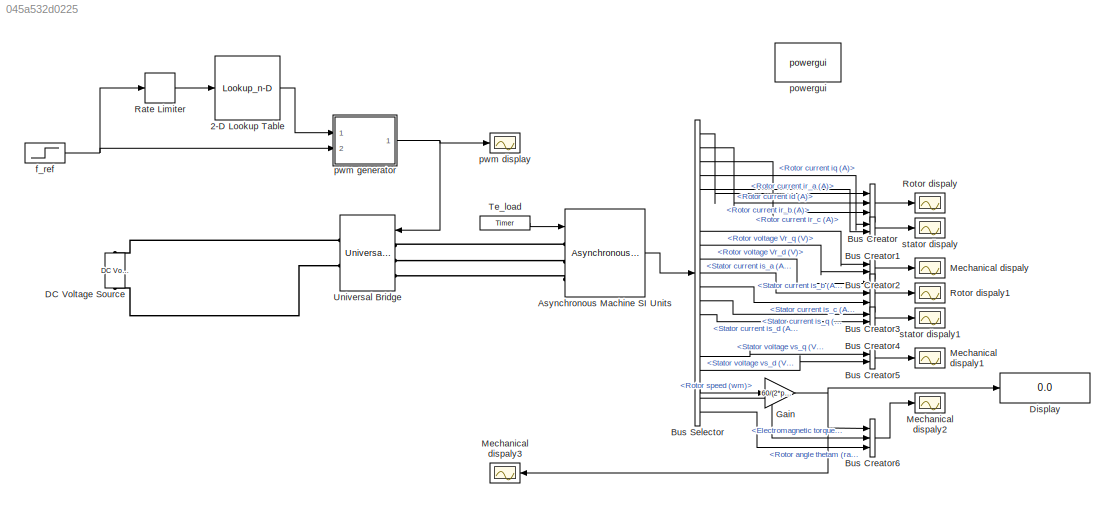
MODEL slx_045a532d0225
KIND model
CONFIG AbsTol = auto
CONFIG EnableMultiTasking = on
CONFIG FixedStep = auto
CONFIG MaxStep = auto
CONFIG MinStep = auto
CONFIG RelTol = 1e-3
CONFIG SampleTimeConstraint = Unconstrained
CONFIG Solver = ode23
CONFIG SolverName = ode23
CONFIG StartTime = 0.0
CONFIG StopTime = 4
BLOCK [Lookup_n-D] 2-D Lookup Table
  BreakpointsForDimension1 = [0 5 25 50 100]
  BreakpointsForDimension2 = [1:3]
  NumberOfTableDimensions = 1
  Ports = [1, 1]
  RndMeth = Simplest
  Table = [0.1 0.1 0.5 1 1]
BLOCK [Reference] Asynchronous Machine SI Units  REF=powerlib/Machines/Asynchronous Machine
SI Units
  AttributesFormatString = \n
  Ports = [1, 1, 0, 0, 0, 3]
  SourceBlock = powerlib/Machines/Asynchronous Machine\nSI Units
  SourceProductBaseCode = PS
  SourceProductName = Simscape Electrical
  SourceType = Asynchronous Machine
BLOCK [BusCreator] Bus Creator
  DisplayOption = bar
  InheritFromInputs = on
  Inputs = 3
  Ports = [3, 1]
BLOCK [BusCreator] Bus Creator1
  DisplayOption = bar
  InheritFromInputs = on
  Inputs = 2
  Ports = [2, 1]
BLOCK [BusCreator] Bus Creator2
  DisplayOption = bar
  InheritFromInputs = on
  Inputs = 2
  Ports = [2, 1]
BLOCK [BusCreator] Bus Creator3
  DisplayOption = bar
  InheritFromInputs = on
  Inputs = 3
  Ports = [3, 1]
BLOCK [BusCreator] Bus Creator4
  DisplayOption = bar
  InheritFromInputs = on
  Inputs = 2
  Ports = [2, 1]
BLOCK [BusCreator] Bus Creator5
  DisplayOption = bar
  InheritFromInputs = on
  Inputs = 2
  Ports = [2, 1]
BLOCK [BusCreator] Bus Creator6
  DisplayOption = bar
  InheritFromInputs = on
  Inputs = 3
  Ports = [3, 1]
BLOCK [BusSelector] Bus Selector
  OutputAsBus = off
  OutputSignals = Rotor measurements.Rotor current ir_a (A),Rotor measurements.Rotor current ir_b (A),Rotor measurements.Rotor current ir_c (A),Rotor measurements.Rotor current  iq (A),Rotor measurements.Rotor current  id (A),Rotor measurements.Rotor flux phir_q (V s),Rotor measurements.Rotor flux phir_d (V s),Rotor measurements.Rotor voltage Vr_q (V),Rotor measurements.Rotor voltage Vr_d (V),Stator measurements.St...<+483ch>
  Ports = [1, 21]
BLOCK [Reference] DC Voltage Source  REF=powerlib/Electrical
Sources/DC Voltage Source
  Ports = [0, 0, 0, 0, 0, 1, 1]
  SourceBlock = powerlib/Electrical\nSources/DC Voltage Source
  SourceProductBaseCode = PS
  SourceProductName = Simscape Electrical
  SourceType = DC Voltage Source
BLOCK [Display] Display
  Decimation = 1
  Ports = [1]
BLOCK [Gain] Gain
  Gain = 60/(2*pi)
  OutDataTypeStr = Inherit: Inherit via internal rule
  ParamDataTypeStr = Inherit: Inherit via internal rule
  SaturateOnIntegerOverflow = off
BLOCK [Scope] Mechanical dispaly
  Floating = off
  NumInputPorts = 1
  Ports = [1]
  ScopeSpecificationString = Simulink.scopes.TimeScopeBlockCfg('CurrentConfiguration', extmgr.ConfigurationSet(extmgr.Configuration('Core','General UI',true),extmgr.Configuration('Core','Source UI',true),extmgr.Configuration('Sources','WiredSimulink',true,'DataLoggingVariableName','ScopeData2','DataLoggingSaveFormat','StructureWithTime','DataLoggingDecimation','1','DataLoggingDecimateData',true),extmgr.Configuration('Visuals'...<+875ch>
BLOCK [Scope] Mechanical dispaly1
  Floating = off
  NumInputPorts = 1
  Ports = [1]
  ScopeSpecificationString = Simulink.scopes.TimeScopeBlockCfg('CurrentConfiguration', extmgr.ConfigurationSet(extmgr.Configuration('Core','General UI',true),extmgr.Configuration('Core','Source UI',true),extmgr.Configuration('Sources','WiredSimulink',true,'DataLoggingVariableName','ScopeData5','DataLoggingSaveFormat','StructureWithTime','DataLoggingDecimation','1','DataLoggingDecimateData',true),extmgr.Configuration('Visuals'...<+875ch>
BLOCK [Scope] Mechanical dispaly2
  Floating = off
  NumInputPorts = 1
  Ports = [1]
  ScopeSpecificationString = Simulink.scopes.TimeScopeBlockCfg('CurrentConfiguration', extmgr.ConfigurationSet(extmgr.Configuration('Core','General UI',true),extmgr.Configuration('Core','Source UI',true),extmgr.Configuration('Sources','WiredSimulink',true,'DataLoggingVariableName','ScopeData8','DataLoggingSaveFormat','StructureWithTime','DataLoggingDecimation','1','DataLoggingDecimateData',true),extmgr.Configuration('Visuals'...<+1748ch>
BLOCK [Scope] Mechanical dispaly3
  Floating = off
  NumInputPorts = 1
  Ports = [1]
  ScopeSpecificationString = Simulink.scopes.TimeScopeBlockCfg('CurrentConfiguration', extmgr.ConfigurationSet(extmgr.Configuration('Core','General UI',true),extmgr.Configuration('Core','Source UI',true),extmgr.Configuration('Sources','WiredSimulink',true,'DataLoggingVariableName','ScopeData1','DataLoggingSaveFormat','StructureWithTime','DataLoggingDecimation','1','DataLoggingDecimateData',true),extmgr.Configuration('Visuals'...<+1748ch>
BLOCK [RateLimiter] Rate Limiter
  FallingSlewLimit = -200
  RisingSlewLimit = 200
BLOCK [Scope] Rotor dispaly
  Floating = off
  NumInputPorts = 1
  Ports = [1]
  ScopeSpecificationString = Simulink.scopes.TimeScopeBlockCfg('CurrentConfiguration', extmgr.ConfigurationSet(extmgr.Configuration('Core','General UI',true),extmgr.Configuration('Core','Source UI',true),extmgr.Configuration('Sources','WiredSimulink',true,'DataLoggingSaveFormat','StructureWithTime','DataLoggingDecimation','1','DataLoggingDecimateData',true),extmgr.Configuration('Visuals','Time Domain',true,'SerializedDisplays...<+1553ch>
BLOCK [Scope] Rotor dispaly1
  Floating = off
  NumInputPorts = 1
  Ports = [1]
  ScopeSpecificationString = Simulink.scopes.TimeScopeBlockCfg('CurrentConfiguration', extmgr.ConfigurationSet(extmgr.Configuration('Core','General UI',true),extmgr.Configuration('Core','Source UI',true),extmgr.Configuration('Sources','WiredSimulink',true,'DataLoggingVariableName','ScopeData6','DataLoggingSaveFormat','StructureWithTime','DataLoggingDecimation','1','DataLoggingDecimateData',true),extmgr.Configuration('Visuals'...<+875ch>
BLOCK [Reference] Te_load  REF=powerlib_extras/Control 
Blocks/Timer
  Ports = [0, 1]
  SourceBlock = powerlib_extras/Control \nBlocks/Timer
  SourceProductBaseCode = PS
  SourceProductName = Simscape Electrical
  SourceType = Timer
BLOCK [Reference] Universal Bridge  REF=powerlib/Power
Electronics/Universal Bridge
  Ports = [1, 0, 0, 0, 0, 3, 2]
  SourceBlock = powerlib/Power\nElectronics/Universal Bridge
  SourceProductBaseCode = PS
  SourceProductName = Simscape Electrical
  SourceType = Universal Bridge
BLOCK [Step] f_ref
  After = 30
  Before = 50
  SampleTime = 0
BLOCK [Reference] powergui  REF=powerlib/powergui
  Ports = []
  Priority = 1
  SourceBlock = powerlib/powergui
  SourceProductBaseCode = PS
  SourceProductName = Simscape Electrical
  SourceType = PSB option menu block
BLOCK [Scope] pwm display
  Floating = off
  NumInputPorts = 1
  Ports = [1]
  ScopeSpecificationString = Simulink.scopes.TimeScopeBlockCfg('CurrentConfiguration', extmgr.ConfigurationSet(extmgr.Configuration('Core','General UI',true),extmgr.Configuration('Core','Source UI',true),extmgr.Configuration('Sources','WiredSimulink',true,'DataLoggingVariableName','ScopeData3','DataLoggingSaveFormat','StructureWithTime','DataLoggingDecimation','1','DataLoggingDecimateData',true),extmgr.Configuration('Visuals'...<+875ch>
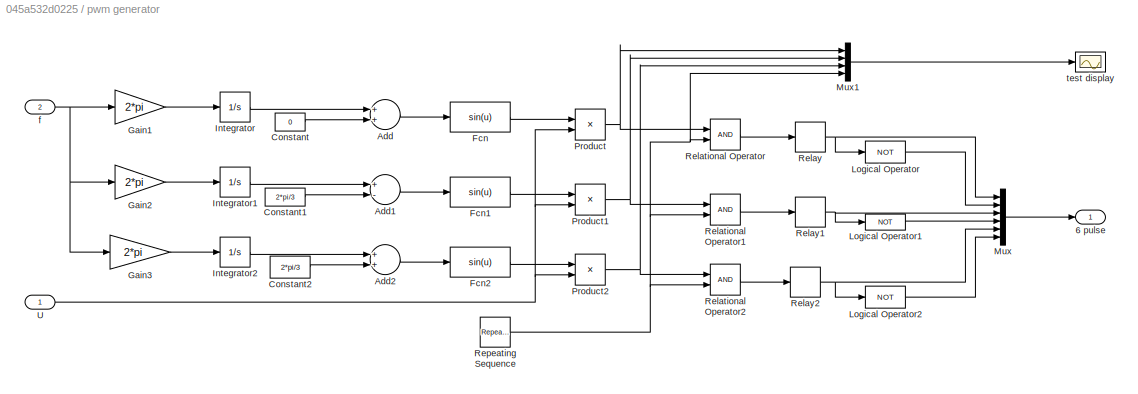
BLOCK [SubSystem] pwm generator
  Ports = [2, 1]
  RequestExecContextInheritance = off
BLOCK [Outport] pwm generator/6 pulse
  IconDisplay = Port number
BLOCK [Sum] pwm generator/Add
  InputSameDT = off
  OutDataTypeStr = Inherit: Inherit via internal rule
  Ports = [2, 1]
  SaturateOnIntegerOverflow = off
BLOCK [Sum] pwm generator/Add1
  InputSameDT = off
  Inputs = +-
  OutDataTypeStr = Inherit: Inherit via internal rule
  Ports = [2, 1]
  SaturateOnIntegerOverflow = off
BLOCK [Sum] pwm generator/Add2
  InputSameDT = off
  OutDataTypeStr = Inherit: Inherit via internal rule
  Ports = [2, 1]
  SaturateOnIntegerOverflow = off
BLOCK [Constant] pwm generator/Constant
  Value = 0
BLOCK [Constant] pwm generator/Constant1
  Value = 2*pi/3
BLOCK [Constant] pwm generator/Constant2
  Value = 2*pi/3
BLOCK [Fcn] pwm generator/Fcn
  Expr = sin(u)
BLOCK [Fcn] pwm generator/Fcn1
  Expr = sin(u)
BLOCK [Fcn] pwm generator/Fcn2
  Expr = sin(u)
BLOCK [Gain] pwm generator/Gain1
  Gain = 2*pi
  OutDataTypeStr = Inherit: Inherit via internal rule
  ParamDataTypeStr = Inherit: Inherit via internal rule
  SaturateOnIntegerOverflow = off
BLOCK [Gain] pwm generator/Gain2
  Gain = 2*pi
  OutDataTypeStr = Inherit: Inherit via internal rule
  ParamDataTypeStr = Inherit: Inherit via internal rule
  SaturateOnIntegerOverflow = off
BLOCK [Gain] pwm generator/Gain3
  Gain = 2*pi
  OutDataTypeStr = Inherit: Inherit via internal rule
  ParamDataTypeStr = Inherit: Inherit via internal rule
  SaturateOnIntegerOverflow = off
BLOCK [Integrator] pwm generator/Integrator
  Ports = [1, 1]
BLOCK [Integrator] pwm generator/Integrator1
  Ports = [1, 1]
BLOCK [Integrator] pwm generator/Integrator2
  Ports = [1, 1]
BLOCK [Logic] pwm generator/Logical Operator
  AllPortsSameDT = off
  Operator = NOT
  OutDataTypeStr = boolean
  Ports = [1, 1]
BLOCK [Logic] pwm generator/Logical Operator1
  AllPortsSameDT = off
  Operator = NOT
  OutDataTypeStr = boolean
  Ports = [1, 1]
BLOCK [Logic] pwm generator/Logical Operator2
  AllPortsSameDT = off
  Operator = NOT
  OutDataTypeStr = boolean
  Ports = [1, 1]
BLOCK [Mux] pwm generator/Mux
  DisplayOption = bar
  Inputs = 6
  Ports = [6, 1]
BLOCK [Mux] pwm generator/Mux1
  DisplayOption = bar
  Ports = [4, 1]
BLOCK [Product] pwm generator/Product
  InputSameDT = off
  OutDataTypeStr = Inherit: Inherit via internal rule
  Ports = [2, 1]
  SaturateOnIntegerOverflow = off
BLOCK [Product] pwm generator/Product1
  InputSameDT = off
  OutDataTypeStr = Inherit: Inherit via internal rule
  Ports = [2, 1]
  SaturateOnIntegerOverflow = off
BLOCK [Product] pwm generator/Product2
  InputSameDT = off
  OutDataTypeStr = Inherit: Inherit via internal rule
  Ports = [2, 1]
  SaturateOnIntegerOverflow = off
BLOCK [RelationalOperator] pwm generator/Relational Operator
  InputSameDT = off
  OutDataTypeStr = boolean
  Ports = [2, 1]
BLOCK [RelationalOperator] pwm generator/Relational Operator1
  InputSameDT = off
  OutDataTypeStr = boolean
  Ports = [2, 1]
BLOCK [RelationalOperator] pwm generator/Relational Operator2
  InputSameDT = off
  OutDataTypeStr = boolean
  Ports = [2, 1]
BLOCK [Relay] pwm generator/Relay
BLOCK [Relay] pwm generator/Relay1
BLOCK [Relay] pwm generator/Relay2
BLOCK [Reference] pwm generator/Repeating Sequence  REF=simulink/Sources/Repeating
Sequence
  Ports = [0, 1]
  SourceBlock = simulink/Sources/Repeating\nSequence
  SourceProductBaseCode = SL
  SourceProductName = Simulink
  SourceType = Repeating table
BLOCK [Inport] pwm generator/U
  IconDisplay = Port number
BLOCK [Inport] pwm generator/f
  IconDisplay = Port number
  Port = 2
BLOCK [Scope] pwm generator/test display
  Floating = off
  NumInputPorts = 1
  Ports = [1]
  ScopeSpecificationString = Simulink.scopes.TimeScopeBlockCfg('CurrentConfiguration', extmgr.ConfigurationSet(extmgr.Configuration('Core','General UI',true),extmgr.Configuration('Core','Source UI',true),extmgr.Configuration('Sources','WiredSimulink',true,'DataLoggingVariableName','ScopeData4','DataLoggingSaveFormat','StructureWithTime','DataLoggingDecimation','1','DataLoggingDecimateData',true),extmgr.Configuration('Visuals'...<+1575ch>
BLOCK [Scope] stator dispaly
  Floating = off
  NumInputPorts = 1
  Ports = [1]
  ScopeSpecificationString = Simulink.scopes.TimeScopeBlockCfg('CurrentConfiguration', extmgr.ConfigurationSet(extmgr.Configuration('Core','General UI',true),extmgr.Configuration('Core','Source UI',true),extmgr.Configuration('Sources','WiredSimulink',true,'DataLoggingVariableName','ScopeData1','DataLoggingSaveFormat','StructureWithTime','DataLoggingDecimation','1','DataLoggingDecimateData',true),extmgr.Configuration('Visuals'...<+875ch>
BLOCK [Scope] stator dispaly1
  Floating = off
  NumInputPorts = 1
  Ports = [1]
  ScopeSpecificationString = Simulink.scopes.TimeScopeBlockCfg('CurrentConfiguration', extmgr.ConfigurationSet(extmgr.Configuration('Core','General UI',true),extmgr.Configuration('Core','Source UI',true),extmgr.Configuration('Sources','WiredSimulink',true,'DataLoggingVariableName','ScopeData7','DataLoggingSaveFormat','StructureWithTime','DataLoggingDecimation','1','DataLoggingDecimateData',true),extmgr.Configuration('Visuals'...<+875ch>
LINE 2-D Lookup Table:1 -> pwm generator:1
LINE Asynchronous Machine SI Units:1 -> Bus Selector:1
LINE Bus Creator1:1 -> stator dispaly:1
LINE Bus Creator2:1 -> Mechanical dispaly:1
LINE Bus Creator3:1 -> Rotor dispaly1:1
LINE Bus Creator4:1 -> stator dispaly1:1
LINE Bus Creator5:1 -> Mechanical dispaly1:1
LINE Bus Creator6:1 -> Mechanical dispaly2:1
LINE Bus Creator:1 -> Rotor dispaly:1
LINE Bus Selector:1 -> Bus Creator:1
LINE Bus Selector:10 -> Bus Creator3:1
LINE Bus Selector:11 -> Bus Creator3:2
LINE Bus Selector:12 -> Bus Creator3:3
LINE Bus Selector:13 -> Bus Creator4:1
LINE Bus Selector:14 -> Bus Creator4:2
LINE Bus Selector:17 -> Bus Creator5:1
LINE Bus Selector:18 -> Bus Creator5:2
LINE Bus Selector:19 -> Gain:1
LINE Bus Selector:2 -> Bus Creator:2
LINE Bus Selector:20 -> Bus Creator6:2
LINE Bus Selector:21 -> Bus Creator6:3
LINE Bus Selector:3 -> Bus Creator:3
LINE Bus Selector:4 -> Bus Creator1:1
LINE Bus Selector:5 -> Bus Creator1:2
LINE Bus Selector:8 -> Bus Creator2:1
LINE Bus Selector:9 -> Bus Creator2:2
NET Gain:1 -> Bus Creator6:1, Display:1, Mechanical dispaly3:1
LINE Rate Limiter:1 -> 2-D Lookup Table:1
LINE Te_load:1 -> Asynchronous Machine SI Units:1
NET f_ref:1 -> Rate Limiter:1, pwm generator:2
LINE pwm generator/Add1:1 -> pwm generator/Fcn1:1
LINE pwm generator/Add2:1 -> pwm generator/Fcn2:1
LINE pwm generator/Add:1 -> pwm generator/Fcn:1
LINE pwm generator/Constant1:1 -> pwm generator/Add1:2
LINE pwm generator/Constant2:1 -> pwm generator/Add2:2
LINE pwm generator/Constant:1 -> pwm generator/Add:2
LINE pwm generator/Fcn1:1 -> pwm generator/Product1:1
LINE pwm generator/Fcn2:1 -> pwm generator/Product2:1
LINE pwm generator/Fcn:1 -> pwm generator/Product:1
LINE pwm generator/Gain1:1 -> pwm generator/Integrator:1
LINE pwm generator/Gain2:1 -> pwm generator/Integrator1:1
LINE pwm generator/Gain3:1 -> pwm generator/Integrator2:1
LINE pwm generator/Integrator1:1 -> pwm generator/Add1:1
LINE pwm generator/Integrator2:1 -> pwm generator/Add2:1
LINE pwm generator/Integrator:1 -> pwm generator/Add:1
LINE pwm generator/Logical Operator1:1 -> pwm generator/Mux:4
LINE pwm generator/Logical Operator2:1 -> pwm generator/Mux:6
LINE pwm generator/Logical Operator:1 -> pwm generator/Mux:2
LINE pwm generator/Mux1:1 -> pwm generator/test display:1
LINE pwm generator/Mux:1 -> pwm generator/6 pulse:1
NET pwm generator/Product1:1 -> pwm generator/Mux1:2, pwm generator/Relational Operator1:1
NET pwm generator/Product2:1 -> pwm generator/Mux1:3, pwm generator/Relational Operator2:1
NET pwm generator/Product:1 -> pwm generator/Mux1:1, pwm generator/Relational Operator:1
LINE pwm generator/Relational Operator1:1 -> pwm generator/Relay1:1
LINE pwm generator/Relational Operator2:1 -> pwm generator/Relay2:1
LINE pwm generator/Relational Operator:1 -> pwm generator/Relay:1
NET pwm generator/Relay1:1 -> pwm generator/Logical Operator1:1, pwm generator/Mux:3
NET pwm generator/Relay2:1 -> pwm generator/Logical Operator2:1, pwm generator/Mux:5
NET pwm generator/Relay:1 -> pwm generator/Logical Operator:1, pwm generator/Mux:1
NET pwm generator/Repeating Sequence:1 -> pwm generator/Mux1:4, pwm generator/Relational Operator1:2, pwm generator/Relational Operator2:2, pwm generator/Relational Operator:2
NET pwm generator/U:1 -> pwm generator/Product1:2, pwm generator/Product2:2, pwm generator/Product:2
NET pwm generator/f:1 -> pwm generator/Gain1:1, pwm generator/Gain2:1, pwm generator/Gain3:1
NET pwm generator:1 -> Universal Bridge:1, pwm display:1
PLINE Asynchronous Machine SI Units:LConn1 -- Universal Bridge:LConn1
PLINE Asynchronous Machine SI Units:LConn2 -- Universal Bridge:LConn2
PLINE Asynchronous Machine SI Units:LConn3 -- Universal Bridge:LConn3
PLINE DC Voltage Source:LConn1 -- Universal Bridge:RConn2
PLINE DC Voltage Source:RConn1 -- Universal Bridge:RConn1
note: NET lines group one-source signal fan-out (src -> all destinations, sorted); 1:1 wires keep LINE
